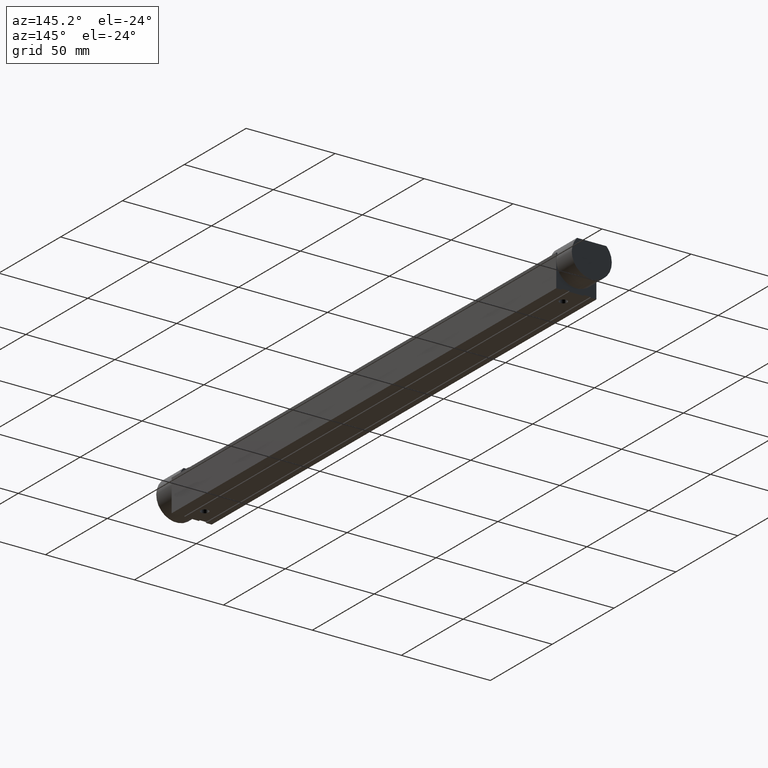
[diagram: clean part render]
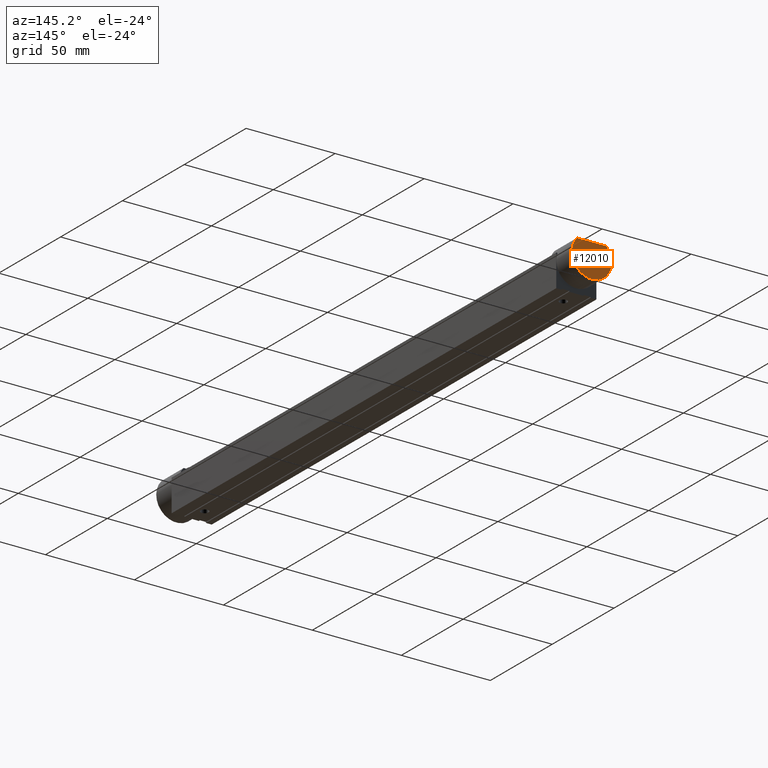
[diagram: same view with one face highlighted and labeled with its STEP entity id]
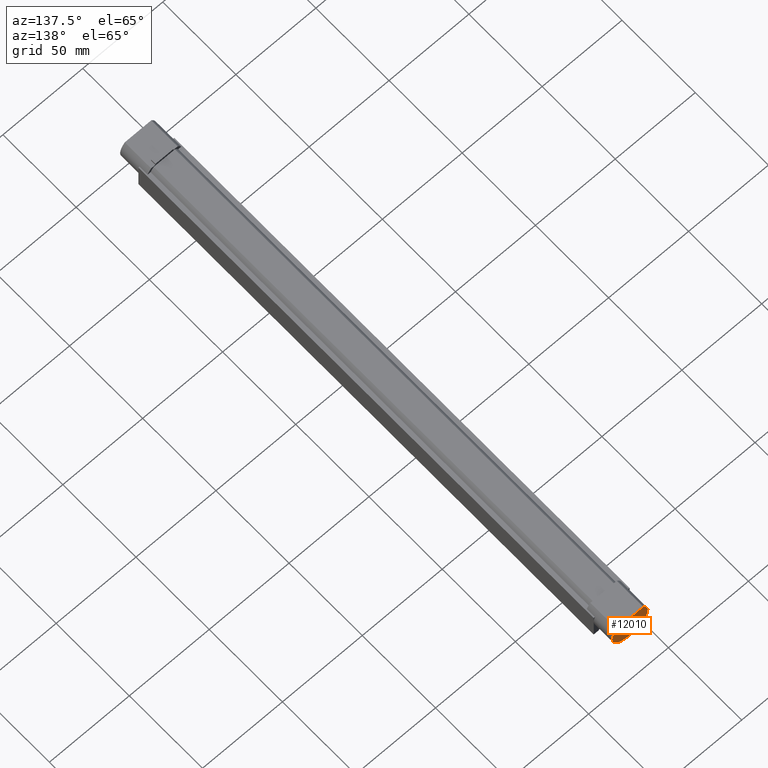
[diagram: same view with one face highlighted and labeled with its STEP entity id]
A machine part, auxiliary view. The second image highlights one B-rep face of the part: STEP entity #12010.
A second angle (auxiliary view) of the same face is appended — the face is thin or edge-on in the first view.
In plain terms, the highlighted planar face has unit normal (-0, -1, 0).
Its self-contained STEP definition (entity closure, byte-faithful):
#11580=CARTESIAN_POINT('',(336.,8.29004981596238,-25.6039554467767));
#11590=VERTEX_POINT('',#11580);
#11620=CARTESIAN_POINT('',(336.,0.,-18.));
#11630=DIRECTION('',(1.,0.,0.));
#11640=DIRECTION('',(0.,0.736944080485875,-0.675953713087537));
#11650=AXIS2_PLACEMENT_3D('',#11620,#11630,#11640);
#11660=CIRCLE('',#11650,11.2492250572074);
#11670=CARTESIAN_POINT('',(336.,-8.29004981596238,-25.6039554467767));
#11680=VERTEX_POINT('',#11670);
#11690=EDGE_CURVE('',#11590,#11680,#11660,.T.);
#11870=CARTESIAN_POINT('',(336.,0.,-16.1773651947847));
#11880=DIRECTION('',(-1.,-0.,-0.));
#11890=DIRECTION('',(0.,0.,-1.));
#11900=AXIS2_PLACEMENT_3D('',#11870,#11880,#11890);
#11910=PLANE('',#11900);
#11920=CARTESIAN_POINT('',(336.,-8.29004981596238,-25.6039554467767));
#11930=DIRECTION('',(0.,1.,0.));
#11940=VECTOR('',#11930,1.);
#11950=LINE('',#11920,#11940);
#11960=EDGE_CURVE('',#11680,#11590,#11950,.T.);
#11970=ORIENTED_EDGE('',*,*,#11960,.T.);
#11980=ORIENTED_EDGE('',*,*,#11690,.T.);
#11990=EDGE_LOOP('',(#11980,#11970));
#12000=FACE_OUTER_BOUND('',#11990,.T.);
#12010=ADVANCED_FACE('',(#12000),#11910,.F.);